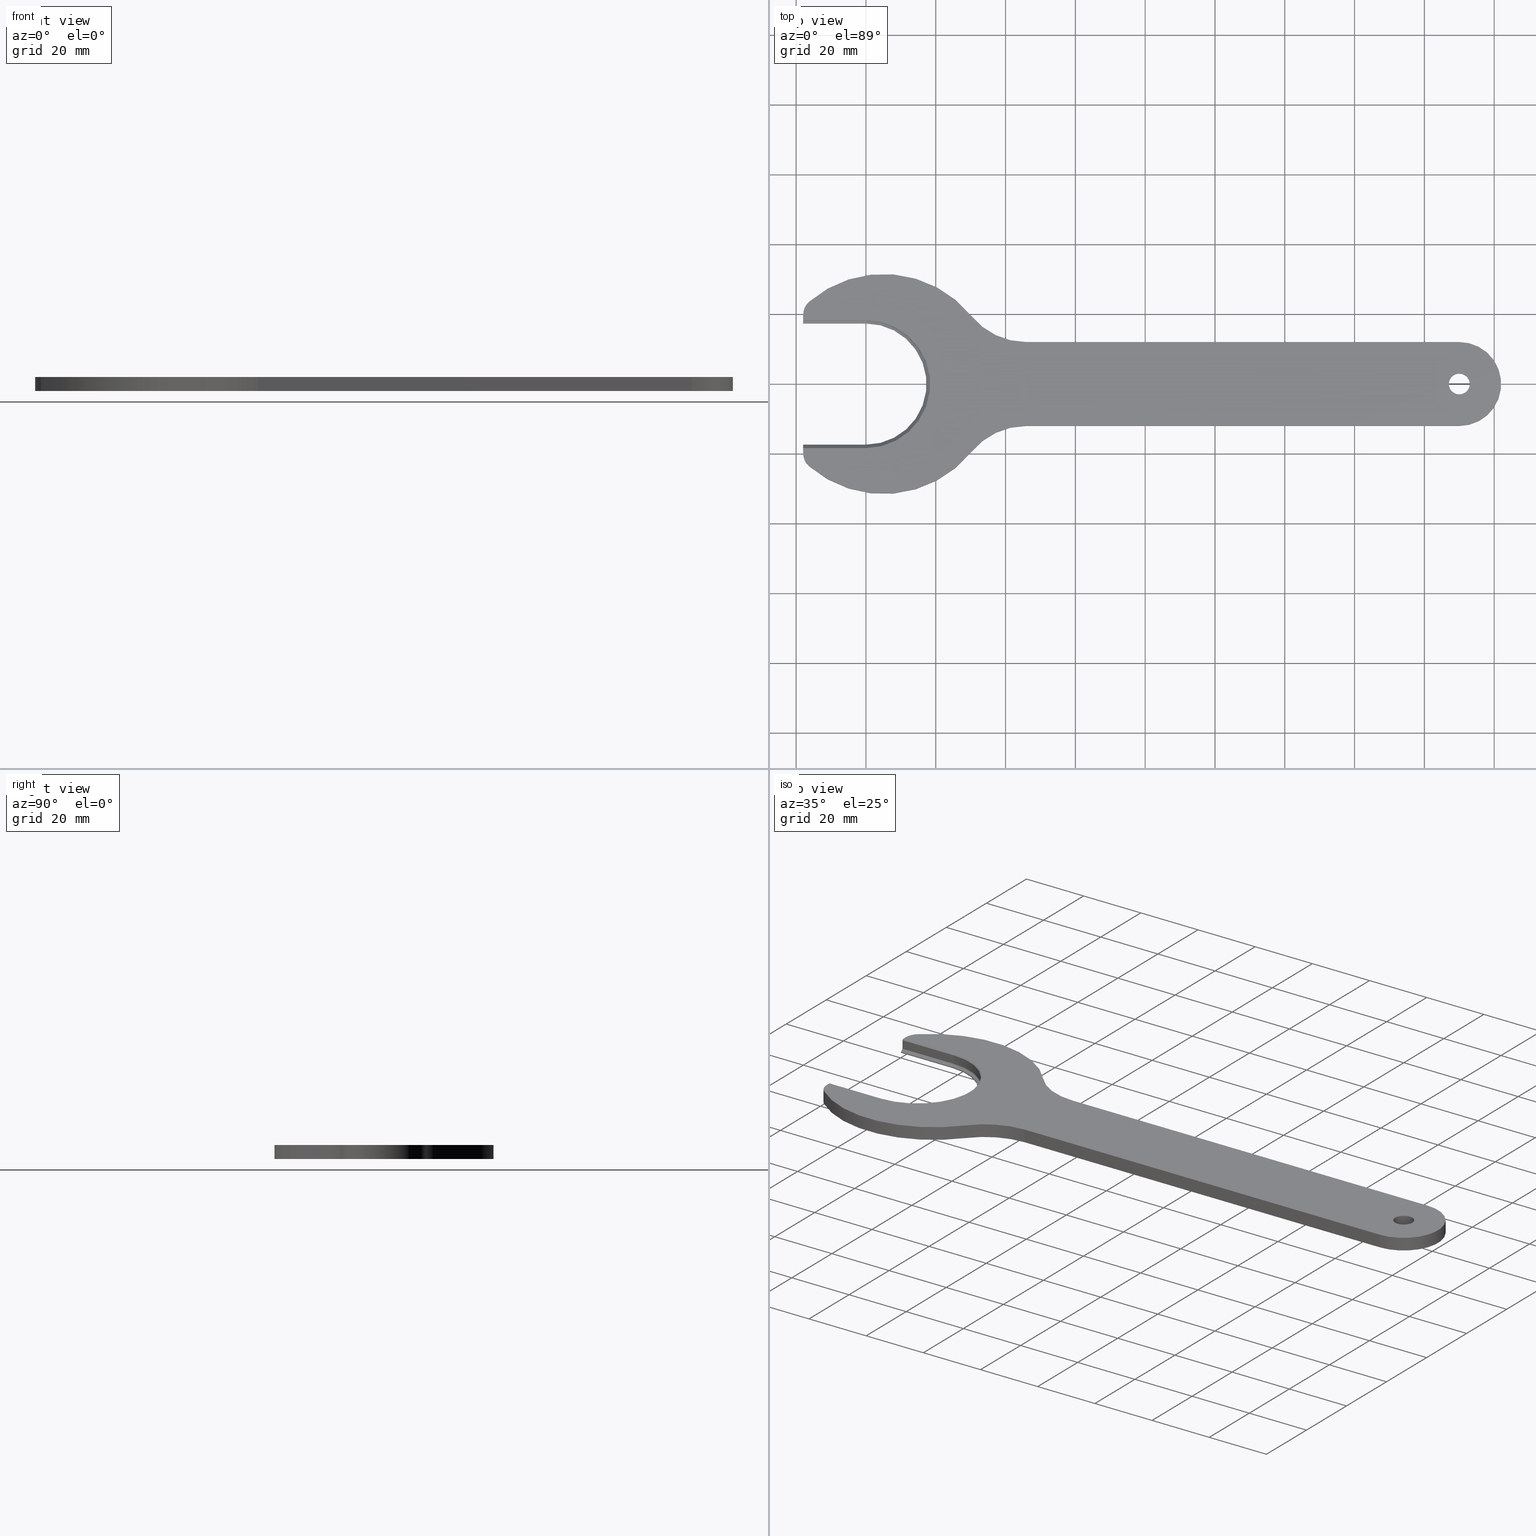
[diagram: canonical four-view strip — front | top / right | iso, engineering-drawing reading convention]
A machine part, canonical four-view strip (front | top / right | iso — engineering-drawing reading convention). The complete STEP part file that produces these views, byte-faithful:
ISO-10303-21;
HEADER;
FILE_DESCRIPTION( ( 'Unknown' ), '1' );
FILE_NAME( 'C:/Users/tkokas/Desktop/732132000-B.stp', 'Unknown', ( 'Unknown' ), ( 'Unknown' ), 'PSStep 15.0.49', 'Unknown', '  ' );
FILE_SCHEMA( ( 'AUTOMOTIVE_DESIGN { 1 0 10303 214 1 1 1 1 }' ) );
ENDSEC;
DATA;
#1 = MECHANICAL_DESIGN_GEOMETRIC_PRESENTATION_REPRESENTATION( ' ', ( #10, #11, #12, #13, #14, #15, #16, #17, #18, #19, #20, #21, #22, #23, #24, #25, #26, #27, #28, #29, #30, #31, #32, #33, #34, #35 ), #6 );
#2 = PRODUCT_DEFINITION_CONTEXT( '', #36, 'design' );
#3 = APPLICATION_PROTOCOL_DEFINITION( 'international standard', 'automotive_design', 2001, #36 );
#4 = PRODUCT_CATEGORY_RELATIONSHIP( 'NONE', 'NONE', #37, #38 );
#5 = SHAPE_DEFINITION_REPRESENTATION( #39, #40 );
#6 =  ( GEOMETRIC_REPRESENTATION_CONTEXT( 3 )GLOBAL_UNCERTAINTY_ASSIGNED_CONTEXT( ( #43 ) )GLOBAL_UNIT_ASSIGNED_CONTEXT( ( #45, #46, #47 ) )REPRESENTATION_CONTEXT( 'NONE', 'WORKSPACE' ) );
#10 = STYLED_ITEM( '', ( #49 ), #50 );
#11 = STYLED_ITEM( '', ( #51 ), #52 );
#12 = STYLED_ITEM( '', ( #53 ), #54 );
#13 = STYLED_ITEM( '', ( #55 ), #56 );
#14 = STYLED_ITEM( '', ( #57 ), #58 );
#15 = STYLED_ITEM( '', ( #59 ), #60 );
#16 = STYLED_ITEM( '', ( #61 ), #62 );
#17 = STYLED_ITEM( '', ( #63 ), #64 );
#18 = STYLED_ITEM( '', ( #65 ), #66 );
#19 = STYLED_ITEM( '', ( #67 ), #68 );
#20 = STYLED_ITEM( '', ( #69 ), #70 );
#21 = STYLED_ITEM( '', ( #71 ), #72 );
#22 = STYLED_ITEM( '', ( #73 ), #74 );
#23 = STYLED_ITEM( '', ( #75 ), #76 );
#24 = STYLED_ITEM( '', ( #77 ), #78 );
#25 = STYLED_ITEM( '', ( #79 ), #80 );
#26 = STYLED_ITEM( '', ( #81 ), #82 );
#27 = STYLED_ITEM( '', ( #83 ), #84 );
#28 = STYLED_ITEM( '', ( #85 ), #86 );
#29 = STYLED_ITEM( '', ( #87 ), #88 );
#30 = STYLED_ITEM( '', ( #89 ), #90 );
#31 = STYLED_ITEM( '', ( #91 ), #92 );
#32 = STYLED_ITEM( '', ( #93 ), #94 );
#33 = STYLED_ITEM( '', ( #95 ), #96 );
#34 = STYLED_ITEM( '', ( #97 ), #98 );
#35 = STYLED_ITEM( '', ( #99 ), #100 );
#36 = APPLICATION_CONTEXT( 'core data for automotive mechanical design processes' );
#37 = PRODUCT_CATEGORY( 'part', 'NONE' );
#38 = PRODUCT_RELATED_PRODUCT_CATEGORY( 'detail', ' ', ( #101 ) );
#39 = PRODUCT_DEFINITION_SHAPE( 'NONE', 'NONE', #102 );
#40 = ADVANCED_BREP_SHAPE_REPRESENTATION( '1', ( #103, #104 ), #6 );
#43 = UNCERTAINTY_MEASURE_WITH_UNIT( LENGTH_MEASURE( 0.00100000000000000 ), #45, '', '' );
#45 =  ( CONVERSION_BASED_UNIT( 'MILLIMETRE', #107 )LENGTH_UNIT(  )NAMED_UNIT( #110 ) );
#46 =  ( NAMED_UNIT( #112 )PLANE_ANGLE_UNIT(  )SI_UNIT( $, .RADIAN. ) );
#47 =  ( NAMED_UNIT( #112 )SI_UNIT( $, .STERADIAN. )SOLID_ANGLE_UNIT(  ) );
#49 = PRESENTATION_STYLE_ASSIGNMENT( ( #118 ) );
#50 = ADVANCED_FACE( '', ( #119 ), #120, .F. );
#51 = PRESENTATION_STYLE_ASSIGNMENT( ( #121 ) );
#52 = ADVANCED_FACE( '', ( #122 ), #123, .F. );
#53 = PRESENTATION_STYLE_ASSIGNMENT( ( #124 ) );
#54 = ADVANCED_FACE( '', ( #125 ), #126, .T. );
#55 = PRESENTATION_STYLE_ASSIGNMENT( ( #127 ) );
#56 = ADVANCED_FACE( '', ( #128 ), #129, .T. );
#57 = PRESENTATION_STYLE_ASSIGNMENT( ( #130 ) );
#58 = ADVANCED_FACE( '', ( #131 ), #132, .F. );
#59 = PRESENTATION_STYLE_ASSIGNMENT( ( #133 ) );
#60 = ADVANCED_FACE( '', ( #134 ), #135, .F. );
#61 = PRESENTATION_STYLE_ASSIGNMENT( ( #136 ) );
#62 = ADVANCED_FACE( '', ( #137 ), #138, .F. );
#63 = PRESENTATION_STYLE_ASSIGNMENT( ( #139 ) );
#64 = ADVANCED_FACE( '', ( #140 ), #141, .T. );
#65 = PRESENTATION_STYLE_ASSIGNMENT( ( #142 ) );
#66 = ADVANCED_FACE( '', ( #143 ), #144, .T. );
#67 = PRESENTATION_STYLE_ASSIGNMENT( ( #145 ) );
#68 = ADVANCED_FACE( '', ( #146, #147 ), #148, .F. );
#69 = PRESENTATION_STYLE_ASSIGNMENT( ( #149 ) );
#70 = ADVANCED_FACE( '', ( #150 ), #151, .T. );
#71 = PRESENTATION_STYLE_ASSIGNMENT( ( #152 ) );
#72 = ADVANCED_FACE( '', ( #153 ), #154, .F. );
#73 = PRESENTATION_STYLE_ASSIGNMENT( ( #155 ) );
#74 = ADVANCED_FACE( '', ( #156 ), #157, .T. );
#75 = PRESENTATION_STYLE_ASSIGNMENT( ( #158 ) );
#76 = ADVANCED_FACE( '', ( #159 ), #160, .F. );
#77 = PRESENTATION_STYLE_ASSIGNMENT( ( #161 ) );
#78 = ADVANCED_FACE( '', ( #162 ), #163, .T. );
#79 = PRESENTATION_STYLE_ASSIGNMENT( ( #164 ) );
#80 = ADVANCED_FACE( '', ( #165 ), #166, .T. );
#81 = PRESENTATION_STYLE_ASSIGNMENT( ( #167 ) );
#82 = ADVANCED_FACE( '', ( #168 ), #169, .T. );
#83 = PRESENTATION_STYLE_ASSIGNMENT( ( #170 ) );
#84 = ADVANCED_FACE( '', ( #171, #172 ), #173, .F. );
#85 = PRESENTATION_STYLE_ASSIGNMENT( ( #174 ) );
#86 = ADVANCED_FACE( '', ( #175 ), #176, .F. );
#87 = PRESENTATION_STYLE_ASSIGNMENT( ( #177 ) );
#88 = ADVANCED_FACE( '', ( #178 ), #179, .T. );
#89 = PRESENTATION_STYLE_ASSIGNMENT( ( #180 ) );
#90 = ADVANCED_FACE( '', ( #181 ), #182, .T. );
#91 = PRESENTATION_STYLE_ASSIGNMENT( ( #183 ) );
#92 = ADVANCED_FACE( '', ( #184 ), #185, .F. );
#93 = PRESENTATION_STYLE_ASSIGNMENT( ( #186 ) );
#94 = ADVANCED_FACE( '', ( #187 ), #188, .T. );
#95 = PRESENTATION_STYLE_ASSIGNMENT( ( #189 ) );
#96 = ADVANCED_FACE( '', ( #190 ), #191, .T. );
#97 = PRESENTATION_STYLE_ASSIGNMENT( ( #192 ) );
#98 = ADVANCED_FACE( '', ( #193, #194 ), #195, .T. );
#99 = PRESENTATION_STYLE_ASSIGNMENT( ( #196 ) );
#100 = ADVANCED_FACE( '', ( #197 ), #198, .F. );
#101 = PRODUCT( '1', '1', 'PART-1-DESC', ( #199 ) );
#102 = PRODUCT_DEFINITION( 'NONE', 'NONE', #200, #2 );
#103 = MANIFOLD_SOLID_BREP( '1', #201 );
#104 = AXIS2_PLACEMENT_3D( '', #202, #203, #204 );
#107 = LENGTH_MEASURE_WITH_UNIT( LENGTH_MEASURE( 1.00000000000000 ), #205 );
#110 = DIMENSIONAL_EXPONENTS( 1.00000000000000, 0.000000000000000, 0.000000000000000, 0.000000000000000, 0.000000000000000, 0.000000000000000, 0.000000000000000 );
#112 = DIMENSIONAL_EXPONENTS( 0.000000000000000, 0.000000000000000, 0.000000000000000, 0.000000000000000, 0.000000000000000, 0.000000000000000, 0.000000000000000 );
#118 = SURFACE_STYLE_USAGE( .BOTH., #206 );
#119 = FACE_OUTER_BOUND( '', #207, .T. );
#120 = CYLINDRICAL_SURFACE( '', #208, 18.1000000000000 );
#121 = SURFACE_STYLE_USAGE( .BOTH., #209 );
#122 = FACE_OUTER_BOUND( '', #210, .T. );
#123 = PLANE( '', #211 );
#124 = SURFACE_STYLE_USAGE( .BOTH., #212 );
#125 = FACE_OUTER_BOUND( '', #213, .T. );
#126 = PLANE( '', #214 );
#127 = SURFACE_STYLE_USAGE( .BOTH., #215 );
#128 = FACE_OUTER_BOUND( '', #216, .T. );
#129 = CYLINDRICAL_SURFACE( '', #217, 5.00000000000000 );
#130 = SURFACE_STYLE_USAGE( .BOTH., #218 );
#131 = FACE_OUTER_BOUND( '', #219, .T. );
#132 = CONICAL_SURFACE( '', #220, 18.4000000000000, 0.785398163397451 );
#133 = SURFACE_STYLE_USAGE( .BOTH., #221 );
#134 = FACE_OUTER_BOUND( '', #222, .T. );
#135 = PLANE( '', #223 );
#136 = SURFACE_STYLE_USAGE( .BOTH., #224 );
#137 = FACE_OUTER_BOUND( '', #225, .T. );
#138 = CONICAL_SURFACE( '', #226, 18.1000000000000, 0.785398163397449 );
#139 = SURFACE_STYLE_USAGE( .BOTH., #227 );
#140 = FACE_OUTER_BOUND( '', #228, .T. );
#141 = PLANE( '', #229 );
#142 = SURFACE_STYLE_USAGE( .BOTH., #230 );
#143 = FACE_OUTER_BOUND( '', #231, .T. );
#144 = PLANE( '', #232 );
#145 = SURFACE_STYLE_USAGE( .BOTH., #233 );
#146 = FACE_BOUND( '', #234, .T. );
#147 = FACE_OUTER_BOUND( '', #235, .T. );
#148 = PLANE( '', #236 );
#149 = SURFACE_STYLE_USAGE( .BOTH., #237 );
#150 = FACE_OUTER_BOUND( '', #238, .T. );
#151 = PLANE( '', #239 );
#152 = SURFACE_STYLE_USAGE( .BOTH., #240 );
#153 = FACE_OUTER_BOUND( '', #241, .T. );
#154 = CYLINDRICAL_SURFACE( '', #242, 20.0000000000000 );
#155 = SURFACE_STYLE_USAGE( .BOTH., #243 );
#156 = FACE_OUTER_BOUND( '', #244, .T. );
#157 = PLANE( '', #245 );
#158 = SURFACE_STYLE_USAGE( .BOTH., #246 );
#159 = FACE_OUTER_BOUND( '', #247, .T. );
#160 = PLANE( '', #248 );
#161 = SURFACE_STYLE_USAGE( .BOTH., #249 );
#162 = FACE_OUTER_BOUND( '', #250, .T. );
#163 = CYLINDRICAL_SURFACE( '', #251, 12.0000000000000 );
#164 = SURFACE_STYLE_USAGE( .BOTH., #252 );
#165 = FACE_OUTER_BOUND( '', #253, .T. );
#166 = PLANE( '', #254 );
#167 = SURFACE_STYLE_USAGE( .BOTH., #255 );
#168 = FACE_OUTER_BOUND( '', #256, .T. );
#169 = PLANE( '', #257 );
#170 = SURFACE_STYLE_USAGE( .BOTH., #258 );
#171 = FACE_OUTER_BOUND( '', #259, .T. );
#172 = FACE_OUTER_BOUND( '', #260, .T. );
#173 = CYLINDRICAL_SURFACE( '', #261, 3.00000000000000 );
#174 = SURFACE_STYLE_USAGE( .BOTH., #262 );
#175 = FACE_OUTER_BOUND( '', #263, .T. );
#176 = CYLINDRICAL_SURFACE( '', #264, 17.3500000000000 );
#177 = SURFACE_STYLE_USAGE( .BOTH., #265 );
#178 = FACE_OUTER_BOUND( '', #266, .T. );
#179 = CYLINDRICAL_SURFACE( '', #267, 5.00000000000000 );
#180 = SURFACE_STYLE_USAGE( .BOTH., #268 );
#181 = FACE_OUTER_BOUND( '', #269, .T. );
#182 = CYLINDRICAL_SURFACE( '', #270, 32.5000000000000 );
#183 = SURFACE_STYLE_USAGE( .BOTH., #271 );
#184 = FACE_OUTER_BOUND( '', #272, .T. );
#185 = CYLINDRICAL_SURFACE( '', #273, 20.0000000000000 );
#186 = SURFACE_STYLE_USAGE( .BOTH., #274 );
#187 = FACE_OUTER_BOUND( '', #275, .T. );
#188 = CYLINDRICAL_SURFACE( '', #276, 32.5000000000000 );
#189 = SURFACE_STYLE_USAGE( .BOTH., #277 );
#190 = FACE_OUTER_BOUND( '', #278, .T. );
#191 = PLANE( '', #279 );
#192 = SURFACE_STYLE_USAGE( .BOTH., #280 );
#193 = FACE_BOUND( '', #281, .T. );
#194 = FACE_OUTER_BOUND( '', #282, .T. );
#195 = PLANE( '', #283 );
#196 = SURFACE_STYLE_USAGE( .BOTH., #284 );
#197 = FACE_OUTER_BOUND( '', #285, .T. );
#198 = PLANE( '', #286 );
#199 = PRODUCT_CONTEXT( '', #36, 'mechanical' );
#200 = PRODUCT_DEFINITION_FORMATION_WITH_SPECIFIED_SOURCE( ' ', 'NONE', #101, .NOT_KNOWN. );
#201 = CLOSED_SHELL( '', ( #74, #92, #78, #80, #96, #94, #90, #68, #98, #84, #70, #50, #82, #86, #76, #52, #100, #58, #60, #54, #62, #66, #88, #56, #64, #72 ) );
#202 = CARTESIAN_POINT( '', ( 0.000000000000000, 0.000000000000000, 0.000000000000000 ) );
#203 = DIRECTION( '', ( 0.000000000000000, 0.000000000000000, 1.00000000000000 ) );
#204 = DIRECTION( '', ( 1.00000000000000, 0.000000000000000, 0.000000000000000 ) );
#205 =  ( LENGTH_UNIT(  )NAMED_UNIT( #110 )SI_UNIT( .MILLI., .METRE. ) );
#206 = SURFACE_SIDE_STYLE( '', ( #288 ) );
#207 = EDGE_LOOP( '', ( #289, #290, #291, #292 ) );
#208 = AXIS2_PLACEMENT_3D( '', #293, #294, #295 );
#209 = SURFACE_SIDE_STYLE( '', ( #296 ) );
#210 = EDGE_LOOP( '', ( #297, #298, #299, #300 ) );
#211 = AXIS2_PLACEMENT_3D( '', #301, #302, #303 );
#212 = SURFACE_SIDE_STYLE( '', ( #304 ) );
#213 = EDGE_LOOP( '', ( #305, #306, #307, #308 ) );
#214 = AXIS2_PLACEMENT_3D( '', #309, #310, #311 );
#215 = SURFACE_SIDE_STYLE( '', ( #312 ) );
#216 = EDGE_LOOP( '', ( #313, #314, #315, #316 ) );
#217 = AXIS2_PLACEMENT_3D( '', #317, #318, #319 );
#218 = SURFACE_SIDE_STYLE( '', ( #320 ) );
#219 = EDGE_LOOP( '', ( #321, #322, #323, #324 ) );
#220 = AXIS2_PLACEMENT_3D( '', #325, #326, #327 );
#221 = SURFACE_SIDE_STYLE( '', ( #328 ) );
#222 = EDGE_LOOP( '', ( #329, #330, #331, #332 ) );
#223 = AXIS2_PLACEMENT_3D( '', #333, #334, #335 );
#224 = SURFACE_SIDE_STYLE( '', ( #336 ) );
#225 = EDGE_LOOP( '', ( #337, #338, #339, #340 ) );
#226 = AXIS2_PLACEMENT_3D( '', #341, #342, #343 );
#227 = SURFACE_SIDE_STYLE( '', ( #344 ) );
#228 = EDGE_LOOP( '', ( #345, #346, #347, #348 ) );
#229 = AXIS2_PLACEMENT_3D( '', #349, #350, #351 );
#230 = SURFACE_SIDE_STYLE( '', ( #352 ) );
#231 = EDGE_LOOP( '', ( #353, #354, #355, #356 ) );
#232 = AXIS2_PLACEMENT_3D( '', #357, #358, #359 );
#233 = SURFACE_SIDE_STYLE( '', ( #360 ) );
#234 = EDGE_LOOP( '', ( #361 ) );
#235 = EDGE_LOOP( '', ( #362, #363, #364, #365, #366, #367, #368, #369, #370, #371, #372, #373, #374, #375 ) );
#236 = AXIS2_PLACEMENT_3D( '', #376, #377, #378 );
#237 = SURFACE_SIDE_STYLE( '', ( #379 ) );
#238 = EDGE_LOOP( '', ( #380, #381, #382, #383 ) );
#239 = AXIS2_PLACEMENT_3D( '', #384, #385, #386 );
#240 = SURFACE_SIDE_STYLE( '', ( #387 ) );
#241 = EDGE_LOOP( '', ( #388, #389, #390, #391 ) );
#242 = AXIS2_PLACEMENT_3D( '', #392, #393, #394 );
#243 = SURFACE_SIDE_STYLE( '', ( #395 ) );
#244 = EDGE_LOOP( '', ( #396, #397, #398, #399 ) );
#245 = AXIS2_PLACEMENT_3D( '', #400, #401, #402 );
#246 = SURFACE_SIDE_STYLE( '', ( #403 ) );
#247 = EDGE_LOOP( '', ( #404, #405, #406, #407 ) );
#248 = AXIS2_PLACEMENT_3D( '', #408, #409, #410 );
#249 = SURFACE_SIDE_STYLE( '', ( #411 ) );
#250 = EDGE_LOOP( '', ( #412, #413, #414, #415 ) );
#251 = AXIS2_PLACEMENT_3D( '', #416, #417, #418 );
#252 = SURFACE_SIDE_STYLE( '', ( #419 ) );
#253 = EDGE_LOOP( '', ( #420, #421, #422, #423, #424, #425, #426 ) );
#254 = AXIS2_PLACEMENT_3D( '', #427, #428, #429 );
#255 = SURFACE_SIDE_STYLE( '', ( #430 ) );
#256 = EDGE_LOOP( '', ( #431, #432, #433, #434 ) );
#257 = AXIS2_PLACEMENT_3D( '', #435, #436, #437 );
#258 = SURFACE_SIDE_STYLE( '', ( #438 ) );
#259 = EDGE_LOOP( '', ( #439 ) );
#260 = EDGE_LOOP( '', ( #440 ) );
#261 = AXIS2_PLACEMENT_3D( '', #441, #442, #443 );
#262 = SURFACE_SIDE_STYLE( '', ( #444 ) );
#263 = EDGE_LOOP( '', ( #445, #446, #447, #448 ) );
#264 = AXIS2_PLACEMENT_3D( '', #449, #450, #451 );
#265 = SURFACE_SIDE_STYLE( '', ( #452 ) );
#266 = EDGE_LOOP( '', ( #453, #454, #455, #456 ) );
#267 = AXIS2_PLACEMENT_3D( '', #457, #458, #459 );
#268 = SURFACE_SIDE_STYLE( '', ( #460 ) );
#269 = EDGE_LOOP( '', ( #461, #462, #463, #464 ) );
#270 = AXIS2_PLACEMENT_3D( '', #465, #466, #467 );
#271 = SURFACE_SIDE_STYLE( '', ( #468 ) );
#272 = EDGE_LOOP( '', ( #469, #470, #471, #472 ) );
#273 = AXIS2_PLACEMENT_3D( '', #473, #474, #475 );
#274 = SURFACE_SIDE_STYLE( '', ( #476 ) );
#275 = EDGE_LOOP( '', ( #477, #478, #479, #480 ) );
#276 = AXIS2_PLACEMENT_3D( '', #481, #482, #483 );
#277 = SURFACE_SIDE_STYLE( '', ( #484 ) );
#278 = EDGE_LOOP( '', ( #485, #486, #487, #488, #489, #490, #491 ) );
#279 = AXIS2_PLACEMENT_3D( '', #492, #493, #494 );
#280 = SURFACE_SIDE_STYLE( '', ( #495 ) );
#281 = EDGE_LOOP( '', ( #496 ) );
#282 = EDGE_LOOP( '', ( #497, #498, #499, #500, #501, #502, #503, #504, #505, #506, #507, #508, #509, #510 ) );
#283 = AXIS2_PLACEMENT_3D( '', #511, #512, #513 );
#284 = SURFACE_SIDE_STYLE( '', ( #514 ) );
#285 = EDGE_LOOP( '', ( #515, #516, #517, #518 ) );
#286 = AXIS2_PLACEMENT_3D( '', #519, #520, #521 );
#288 = SURFACE_STYLE_FILL_AREA( #522 );
#289 = ORIENTED_EDGE( '', *, *, #523, .T. );
#290 = ORIENTED_EDGE( '', *, *, #524, .T. );
#291 = ORIENTED_EDGE( '', *, *, #525, .F. );
#292 = ORIENTED_EDGE( '', *, *, #526, .T. );
#293 = CARTESIAN_POINT( '', ( 0.000000000000000, 0.000000000000000, -1.00000000000000 ) );
#294 = DIRECTION( '', ( -0.000000000000000, -0.000000000000000, -1.00000000000000 ) );
#295 = DIRECTION( '', ( 1.00000000000000, 0.000000000000000, 0.000000000000000 ) );
#296 = SURFACE_STYLE_FILL_AREA( #527 );
#297 = ORIENTED_EDGE( '', *, *, #528, .T. );
#298 = ORIENTED_EDGE( '', *, *, #529, .T. );
#299 = ORIENTED_EDGE( '', *, *, #530, .F. );
#300 = ORIENTED_EDGE( '', *, *, #531, .F. );
#301 = CARTESIAN_POINT( '', ( 0.000000000000000, -17.3500000000000, -207.726011739126 ) );
#302 = DIRECTION( '', ( 0.000000000000000, -1.00000000000000, 0.000000000000000 ) );
#303 = DIRECTION( '', ( 0.000000000000000, 0.000000000000000, -1.00000000000000 ) );
#304 = SURFACE_STYLE_FILL_AREA( #532 );
#305 = ORIENTED_EDGE( '', *, *, #529, .F. );
#306 = ORIENTED_EDGE( '', *, *, #533, .F. );
#307 = ORIENTED_EDGE( '', *, *, #534, .F. );
#308 = ORIENTED_EDGE( '', *, *, #535, .T. );
#309 = CARTESIAN_POINT( '', ( 6.97744331448449E-015, -18.1000000000000, -1.00000000000000 ) );
#310 = DIRECTION( '', ( -2.72585496299266E-016, 0.707106781186547, 0.707106781186548 ) );
#311 = DIRECTION( '', ( 0.000000000000000, -0.707106781186548, 0.707106781186547 ) );
#312 = SURFACE_STYLE_FILL_AREA( #536 );
#313 = ORIENTED_EDGE( '', *, *, #537, .F. );
#314 = ORIENTED_EDGE( '', *, *, #538, .F. );
#315 = ORIENTED_EDGE( '', *, *, #539, .F. );
#316 = ORIENTED_EDGE( '', *, *, #540, .F. );
#317 = CARTESIAN_POINT( '', ( -13.0000000000000, 19.7906228862918, 2.00000000000000 ) );
#318 = DIRECTION( '', ( -0.000000000000000, -0.000000000000000, 1.00000000000000 ) );
#319 = DIRECTION( '', ( -1.00000000000000, 0.000000000000000, 0.000000000000000 ) );
#320 = SURFACE_STYLE_FILL_AREA( #541 );
#321 = ORIENTED_EDGE( '', *, *, #542, .T. );
#322 = ORIENTED_EDGE( '', *, *, #543, .F. );
#323 = ORIENTED_EDGE( '', *, *, #544, .F. );
#324 = ORIENTED_EDGE( '', *, *, #524, .F. );
#325 = CARTESIAN_POINT( '', ( 0.000000000000000, 0.000000000000000, 2.00000000000000 ) );
#326 = DIRECTION( '', ( -0.000000000000000, -0.000000000000000, 1.00000000000000 ) );
#327 = DIRECTION( '', ( 1.00000000000000, 0.000000000000000, 0.000000000000000 ) );
#328 = SURFACE_STYLE_FILL_AREA( #545 );
#329 = ORIENTED_EDGE( '', *, *, #546, .F. );
#330 = ORIENTED_EDGE( '', *, *, #547, .F. );
#331 = ORIENTED_EDGE( '', *, *, #542, .F. );
#332 = ORIENTED_EDGE( '', *, *, #548, .F. );
#333 = CARTESIAN_POINT( '', ( 45.8319727664486, -18.4000000000000, 2.00000000000000 ) );
#334 = DIRECTION( '', ( 0.000000000000000, -0.707106781186549, -0.707106781186546 ) );
#335 = DIRECTION( '', ( 0.000000000000000, 0.707106781186545, -0.707106781186549 ) );
#336 = SURFACE_STYLE_FILL_AREA( #549 );
#337 = ORIENTED_EDGE( '', *, *, #550, .F. );
#338 = ORIENTED_EDGE( '', *, *, #535, .F. );
#339 = ORIENTED_EDGE( '', *, *, #526, .F. );
#340 = ORIENTED_EDGE( '', *, *, #551, .T. );
#341 = CARTESIAN_POINT( '', ( 3.30643715532042E-015, 0.000000000000000, -1.00000000000000 ) );
#342 = DIRECTION( '', ( -0.000000000000000, -0.000000000000000, 1.00000000000000 ) );
#343 = DIRECTION( '', ( 1.00000000000000, 0.000000000000000, 0.000000000000000 ) );
#344 = SURFACE_STYLE_FILL_AREA( #552 );
#345 = ORIENTED_EDGE( '', *, *, #553, .F. );
#346 = ORIENTED_EDGE( '', *, *, #554, .F. );
#347 = ORIENTED_EDGE( '', *, *, #555, .T. );
#348 = ORIENTED_EDGE( '', *, *, #556, .T. );
#349 = CARTESIAN_POINT( '', ( 45.8319727664486, 12.0000000000000, 2.00000000000000 ) );
#350 = DIRECTION( '', ( 0.000000000000000, 1.00000000000000, 0.000000000000000 ) );
#351 = DIRECTION( '', ( 0.000000000000000, 0.000000000000000, 1.00000000000000 ) );
#352 = SURFACE_STYLE_FILL_AREA( #557 );
#353 = ORIENTED_EDGE( '', *, *, #558, .F. );
#354 = ORIENTED_EDGE( '', *, *, #551, .F. );
#355 = ORIENTED_EDGE( '', *, *, #559, .F. );
#356 = ORIENTED_EDGE( '', *, *, #560, .F. );
#357 = CARTESIAN_POINT( '', ( 0.000000000000000, 18.1000000000000, -1.00000000000000 ) );
#358 = DIRECTION( '', ( 0.000000000000000, -0.707106781186547, 0.707106781186548 ) );
#359 = DIRECTION( '', ( 0.000000000000000, -0.707106781186548, -0.707106781186547 ) );
#360 = SURFACE_STYLE_FILL_AREA( #561 );
#361 = ORIENTED_EDGE( '', *, *, #562, .T. );
#362 = ORIENTED_EDGE( '', *, *, #563, .T. );
#363 = ORIENTED_EDGE( '', *, *, #564, .T. );
#364 = ORIENTED_EDGE( '', *, *, #565, .T. );
#365 = ORIENTED_EDGE( '', *, *, #539, .T. );
#366 = ORIENTED_EDGE( '', *, *, #566, .T. );
#367 = ORIENTED_EDGE( '', *, *, #567, .T. );
#368 = ORIENTED_EDGE( '', *, *, #553, .T. );
#369 = ORIENTED_EDGE( '', *, *, #568, .T. );
#370 = ORIENTED_EDGE( '', *, *, #569, .T. );
#371 = ORIENTED_EDGE( '', *, *, #570, .T. );
#372 = ORIENTED_EDGE( '', *, *, #571, .T. );
#373 = ORIENTED_EDGE( '', *, *, #572, .T. );
#374 = ORIENTED_EDGE( '', *, *, #573, .T. );
#375 = ORIENTED_EDGE( '', *, *, #531, .T. );
#376 = CARTESIAN_POINT( '', ( 45.8319727664486, 32.0000000000000, -2.00000000000000 ) );
#377 = DIRECTION( '', ( 0.000000000000000, 0.000000000000000, 1.00000000000000 ) );
#378 = DIRECTION( '', ( 1.00000000000000, 0.000000000000000, 0.000000000000000 ) );
#379 = SURFACE_STYLE_FILL_AREA( #574 );
#380 = ORIENTED_EDGE( '', *, *, #525, .T. );
#381 = ORIENTED_EDGE( '', *, *, #575, .T. );
#382 = ORIENTED_EDGE( '', *, *, #576, .F. );
#383 = ORIENTED_EDGE( '', *, *, #559, .T. );
#384 = CARTESIAN_POINT( '', ( -18.0000000000000, 18.1000000000000, -1.00000000000000 ) );
#385 = DIRECTION( '', ( 0.000000000000000, -1.00000000000000, 0.000000000000000 ) );
#386 = DIRECTION( '', ( 0.000000000000000, 0.000000000000000, -1.00000000000000 ) );
#387 = SURFACE_STYLE_FILL_AREA( #577 );
#388 = ORIENTED_EDGE( '', *, *, #567, .F. );
#389 = ORIENTED_EDGE( '', *, *, #578, .F. );
#390 = ORIENTED_EDGE( '', *, *, #579, .T. );
#391 = ORIENTED_EDGE( '', *, *, #554, .T. );
#392 = CARTESIAN_POINT( '', ( 45.8319727664486, 32.0000000000000, 2.00000000000000 ) );
#393 = DIRECTION( '', ( -0.000000000000000, -0.000000000000000, 1.00000000000000 ) );
#394 = DIRECTION( '', ( -1.00000000000000, 0.000000000000000, 0.000000000000000 ) );
#395 = SURFACE_STYLE_FILL_AREA( #580 );
#396 = ORIENTED_EDGE( '', *, *, #569, .F. );
#397 = ORIENTED_EDGE( '', *, *, #581, .F. );
#398 = ORIENTED_EDGE( '', *, *, #582, .T. );
#399 = ORIENTED_EDGE( '', *, *, #583, .T. );
#400 = CARTESIAN_POINT( '', ( 170.000000000000, -12.0000000000000, 2.00000000000000 ) );
#401 = DIRECTION( '', ( 0.000000000000000, -1.00000000000000, 0.000000000000000 ) );
#402 = DIRECTION( '', ( 0.000000000000000, 0.000000000000000, -1.00000000000000 ) );
#403 = SURFACE_STYLE_FILL_AREA( #584 );
#404 = ORIENTED_EDGE( '', *, *, #585, .T. );
#405 = ORIENTED_EDGE( '', *, *, #558, .T. );
#406 = ORIENTED_EDGE( '', *, *, #586, .F. );
#407 = ORIENTED_EDGE( '', *, *, #564, .F. );
#408 = CARTESIAN_POINT( '', ( 0.000000000000000, 17.3500000000000, -207.726011739126 ) );
#409 = DIRECTION( '', ( -1.92747052886311E-016, 1.00000000000000, 0.000000000000000 ) );
#410 = DIRECTION( '', ( -1.00000000000000, -1.92747052886310E-016, 0.000000000000000 ) );
#411 = SURFACE_STYLE_FILL_AREA( #587 );
#412 = ORIENTED_EDGE( '', *, *, #568, .F. );
#413 = ORIENTED_EDGE( '', *, *, #556, .F. );
#414 = ORIENTED_EDGE( '', *, *, #588, .T. );
#415 = ORIENTED_EDGE( '', *, *, #581, .T. );
#416 = CARTESIAN_POINT( '', ( 170.000000000000, 0.000000000000000, 2.00000000000000 ) );
#417 = DIRECTION( '', ( -0.000000000000000, -0.000000000000000, 1.00000000000000 ) );
#418 = DIRECTION( '', ( -1.00000000000000, 0.000000000000000, 0.000000000000000 ) );
#419 = SURFACE_STYLE_FILL_AREA( #589 );
#420 = ORIENTED_EDGE( '', *, *, #528, .F. );
#421 = ORIENTED_EDGE( '', *, *, #573, .F. );
#422 = ORIENTED_EDGE( '', *, *, #590, .T. );
#423 = ORIENTED_EDGE( '', *, *, #591, .T. );
#424 = ORIENTED_EDGE( '', *, *, #546, .T. );
#425 = ORIENTED_EDGE( '', *, *, #592, .F. );
#426 = ORIENTED_EDGE( '', *, *, #533, .T. );
#427 = CARTESIAN_POINT( '', ( -18.0000000000000, -17.1000000000000, 2.00000000000000 ) );
#428 = DIRECTION( '', ( -1.00000000000000, 0.000000000000000, 0.000000000000000 ) );
#429 = DIRECTION( '', ( 0.000000000000000, 0.000000000000000, 1.00000000000000 ) );
#430 = SURFACE_STYLE_FILL_AREA( #593 );
#431 = ORIENTED_EDGE( '', *, *, #592, .T. );
#432 = ORIENTED_EDGE( '', *, *, #548, .T. );
#433 = ORIENTED_EDGE( '', *, *, #523, .F. );
#434 = ORIENTED_EDGE( '', *, *, #534, .T. );
#435 = CARTESIAN_POINT( '', ( 0.000000000000000, -18.1000000000000, -1.00000000000000 ) );
#436 = DIRECTION( '', ( 0.000000000000000, 1.00000000000000, 0.000000000000000 ) );
#437 = DIRECTION( '', ( 0.000000000000000, 0.000000000000000, 1.00000000000000 ) );
#438 = SURFACE_STYLE_FILL_AREA( #594 );
#439 = ORIENTED_EDGE( '', *, *, #562, .F. );
#440 = ORIENTED_EDGE( '', *, *, #595, .T. );
#441 = CARTESIAN_POINT( '', ( 170.000000000000, 0.000000000000000, -207.726011739126 ) );
#442 = DIRECTION( '', ( -0.000000000000000, -0.000000000000000, -1.00000000000000 ) );
#443 = DIRECTION( '', ( 1.00000000000000, 0.000000000000000, 0.000000000000000 ) );
#444 = SURFACE_STYLE_FILL_AREA( #596 );
#445 = ORIENTED_EDGE( '', *, *, #530, .T. );
#446 = ORIENTED_EDGE( '', *, *, #550, .T. );
#447 = ORIENTED_EDGE( '', *, *, #585, .F. );
#448 = ORIENTED_EDGE( '', *, *, #563, .F. );
#449 = CARTESIAN_POINT( '', ( 0.000000000000000, 0.000000000000000, -207.726011739126 ) );
#450 = DIRECTION( '', ( -0.000000000000000, -0.000000000000000, -1.00000000000000 ) );
#451 = DIRECTION( '', ( 1.00000000000000, 0.000000000000000, 0.000000000000000 ) );
#452 = SURFACE_STYLE_FILL_AREA( #597 );
#453 = ORIENTED_EDGE( '', *, *, #598, .F. );
#454 = ORIENTED_EDGE( '', *, *, #590, .F. );
#455 = ORIENTED_EDGE( '', *, *, #572, .F. );
#456 = ORIENTED_EDGE( '', *, *, #599, .F. );
#457 = CARTESIAN_POINT( '', ( -13.0000000000000, -19.7906228862918, 2.00000000000000 ) );
#458 = DIRECTION( '', ( -0.000000000000000, -0.000000000000000, 1.00000000000000 ) );
#459 = DIRECTION( '', ( -1.00000000000000, 0.000000000000000, 0.000000000000000 ) );
#460 = SURFACE_STYLE_FILL_AREA( #600 );
#461 = ORIENTED_EDGE( '', *, *, #566, .F. );
#462 = ORIENTED_EDGE( '', *, *, #538, .T. );
#463 = ORIENTED_EDGE( '', *, *, #601, .T. );
#464 = ORIENTED_EDGE( '', *, *, #578, .T. );
#465 = CARTESIAN_POINT( '', ( 5.00000000000000, -1.00000000000000, 2.00000000000000 ) );
#466 = DIRECTION( '', ( -0.000000000000000, -0.000000000000000, 1.00000000000000 ) );
#467 = DIRECTION( '', ( -1.00000000000000, 0.000000000000000, 0.000000000000000 ) );
#468 = SURFACE_STYLE_FILL_AREA( #602 );
#469 = ORIENTED_EDGE( '', *, *, #570, .F. );
#470 = ORIENTED_EDGE( '', *, *, #583, .F. );
#471 = ORIENTED_EDGE( '', *, *, #603, .T. );
#472 = ORIENTED_EDGE( '', *, *, #604, .T. );
#473 = CARTESIAN_POINT( '', ( 45.8319727664486, -32.0000000000000, 2.00000000000000 ) );
#474 = DIRECTION( '', ( -0.000000000000000, -0.000000000000000, 1.00000000000000 ) );
#475 = DIRECTION( '', ( -1.00000000000000, 0.000000000000000, 0.000000000000000 ) );
#476 = SURFACE_STYLE_FILL_AREA( #605 );
#477 = ORIENTED_EDGE( '', *, *, #606, .T. );
#478 = ORIENTED_EDGE( '', *, *, #599, .T. );
#479 = ORIENTED_EDGE( '', *, *, #571, .F. );
#480 = ORIENTED_EDGE( '', *, *, #604, .F. );
#481 = CARTESIAN_POINT( '', ( 5.00000000000000, 1.00000000000000, 2.00000000000000 ) );
#482 = DIRECTION( '', ( -0.000000000000000, -0.000000000000000, 1.00000000000000 ) );
#483 = DIRECTION( '', ( -1.00000000000000, 0.000000000000000, 0.000000000000000 ) );
#484 = SURFACE_STYLE_FILL_AREA( #607 );
#485 = ORIENTED_EDGE( '', *, *, #586, .T. );
#486 = ORIENTED_EDGE( '', *, *, #560, .T. );
#487 = ORIENTED_EDGE( '', *, *, #576, .T. );
#488 = ORIENTED_EDGE( '', *, *, #608, .T. );
#489 = ORIENTED_EDGE( '', *, *, #609, .T. );
#490 = ORIENTED_EDGE( '', *, *, #540, .T. );
#491 = ORIENTED_EDGE( '', *, *, #565, .F. );
#492 = CARTESIAN_POINT( '', ( -18.0000000000000, 21.9619250064100, 2.00000000000000 ) );
#493 = DIRECTION( '', ( -1.00000000000000, 7.13595324358029E-016, 0.000000000000000 ) );
#494 = DIRECTION( '', ( -7.13595324358029E-016, -1.00000000000000, 0.000000000000000 ) );
#495 = SURFACE_STYLE_FILL_AREA( #610 );
#496 = ORIENTED_EDGE( '', *, *, #595, .F. );
#497 = ORIENTED_EDGE( '', *, *, #609, .F. );
#498 = ORIENTED_EDGE( '', *, *, #611, .T. );
#499 = ORIENTED_EDGE( '', *, *, #543, .T. );
#500 = ORIENTED_EDGE( '', *, *, #547, .T. );
#501 = ORIENTED_EDGE( '', *, *, #591, .F. );
#502 = ORIENTED_EDGE( '', *, *, #598, .T. );
#503 = ORIENTED_EDGE( '', *, *, #606, .F. );
#504 = ORIENTED_EDGE( '', *, *, #603, .F. );
#505 = ORIENTED_EDGE( '', *, *, #582, .F. );
#506 = ORIENTED_EDGE( '', *, *, #588, .F. );
#507 = ORIENTED_EDGE( '', *, *, #555, .F. );
#508 = ORIENTED_EDGE( '', *, *, #579, .F. );
#509 = ORIENTED_EDGE( '', *, *, #601, .F. );
#510 = ORIENTED_EDGE( '', *, *, #537, .T. );
#511 = CARTESIAN_POINT( '', ( 45.8319727664486, 32.0000000000000, 2.00000000000000 ) );
#512 = DIRECTION( '', ( 0.000000000000000, 0.000000000000000, 1.00000000000000 ) );
#513 = DIRECTION( '', ( 1.00000000000000, 0.000000000000000, 0.000000000000000 ) );
#514 = SURFACE_STYLE_FILL_AREA( #612 );
#515 = ORIENTED_EDGE( '', *, *, #608, .F. );
#516 = ORIENTED_EDGE( '', *, *, #575, .F. );
#517 = ORIENTED_EDGE( '', *, *, #544, .T. );
#518 = ORIENTED_EDGE( '', *, *, #611, .F. );
#519 = CARTESIAN_POINT( '', ( 45.8319727664486, 18.4000000000000, 2.00000000000000 ) );
#520 = DIRECTION( '', ( 0.000000000000000, 0.707106781186546, -0.707106781186549 ) );
#521 = DIRECTION( '', ( 0.000000000000000, 0.707106781186549, 0.707106781186545 ) );
#522 = FILL_AREA_STYLE( '', ( #613 ) );
#523 = EDGE_CURVE( '', #614, #615, #616, .T. );
#524 = EDGE_CURVE( '', #615, #617, #618, .T. );
#525 = EDGE_CURVE( '', #619, #617, #620, .T. );
#526 = EDGE_CURVE( '', #619, #614, #621, .T. );
#527 = FILL_AREA_STYLE( '', ( #622 ) );
#528 = EDGE_CURVE( '', #623, #624, #625, .T. );
#529 = EDGE_CURVE( '', #624, #626, #627, .T. );
#530 = EDGE_CURVE( '', #628, #626, #629, .T. );
#531 = EDGE_CURVE( '', #623, #628, #630, .T. );
#532 = FILL_AREA_STYLE( '', ( #631 ) );
#533 = EDGE_CURVE( '', #632, #624, #633, .T. );
#534 = EDGE_CURVE( '', #614, #632, #634, .T. );
#535 = EDGE_CURVE( '', #614, #626, #635, .T. );
#536 = FILL_AREA_STYLE( '', ( #636 ) );
#537 = EDGE_CURVE( '', #637, #638, #639, .T. );
#538 = EDGE_CURVE( '', #640, #637, #641, .F. );
#539 = EDGE_CURVE( '', #642, #640, #643, .F. );
#540 = EDGE_CURVE( '', #638, #642, #644, .T. );
#541 = FILL_AREA_STYLE( '', ( #645 ) );
#542 = EDGE_CURVE( '', #615, #646, #647, .T. );
#543 = EDGE_CURVE( '', #648, #646, #649, .F. );
#544 = EDGE_CURVE( '', #617, #648, #650, .T. );
#545 = FILL_AREA_STYLE( '', ( #651 ) );
#546 = EDGE_CURVE( '', #652, #653, #654, .F. );
#547 = EDGE_CURVE( '', #646, #652, #655, .T. );
#548 = EDGE_CURVE( '', #653, #615, #656, .T. );
#549 = FILL_AREA_STYLE( '', ( #657 ) );
#550 = EDGE_CURVE( '', #626, #658, #659, .T. );
#551 = EDGE_CURVE( '', #619, #658, #660, .T. );
#552 = FILL_AREA_STYLE( '', ( #661 ) );
#553 = EDGE_CURVE( '', #662, #663, #664, .T. );
#554 = EDGE_CURVE( '', #665, #662, #666, .T. );
#555 = EDGE_CURVE( '', #665, #667, #668, .T. );
#556 = EDGE_CURVE( '', #667, #663, #669, .T. );
#557 = FILL_AREA_STYLE( '', ( #670 ) );
#558 = EDGE_CURVE( '', #658, #671, #672, .T. );
#559 = EDGE_CURVE( '', #673, #619, #674, .T. );
#560 = EDGE_CURVE( '', #671, #673, #675, .T. );
#561 = FILL_AREA_STYLE( '', ( #676 ) );
#562 = EDGE_CURVE( '', #677, #677, #678, .T. );
#563 = EDGE_CURVE( '', #628, #679, #680, .T. );
#564 = EDGE_CURVE( '', #679, #681, #682, .T. );
#565 = EDGE_CURVE( '', #681, #642, #683, .T. );
#566 = EDGE_CURVE( '', #640, #684, #685, .T. );
#567 = EDGE_CURVE( '', #684, #662, #686, .T. );
#568 = EDGE_CURVE( '', #663, #687, #688, .T. );
#569 = EDGE_CURVE( '', #687, #689, #690, .T. );
#570 = EDGE_CURVE( '', #689, #691, #692, .T. );
#571 = EDGE_CURVE( '', #691, #693, #694, .T. );
#572 = EDGE_CURVE( '', #693, #695, #696, .F. );
#573 = EDGE_CURVE( '', #695, #623, #697, .T. );
#574 = FILL_AREA_STYLE( '', ( #698 ) );
#575 = EDGE_CURVE( '', #617, #699, #700, .T. );
#576 = EDGE_CURVE( '', #673, #699, #701, .T. );
#577 = FILL_AREA_STYLE( '', ( #702 ) );
#578 = EDGE_CURVE( '', #703, #684, #704, .T. );
#579 = EDGE_CURVE( '', #703, #665, #705, .T. );
#580 = FILL_AREA_STYLE( '', ( #706 ) );
#581 = EDGE_CURVE( '', #707, #687, #708, .T. );
#582 = EDGE_CURVE( '', #707, #709, #710, .T. );
#583 = EDGE_CURVE( '', #709, #689, #711, .T. );
#584 = FILL_AREA_STYLE( '', ( #712 ) );
#585 = EDGE_CURVE( '', #679, #658, #713, .T. );
#586 = EDGE_CURVE( '', #681, #671, #714, .T. );
#587 = FILL_AREA_STYLE( '', ( #715 ) );
#588 = EDGE_CURVE( '', #667, #707, #716, .T. );
#589 = FILL_AREA_STYLE( '', ( #717 ) );
#590 = EDGE_CURVE( '', #695, #718, #719, .F. );
#591 = EDGE_CURVE( '', #718, #652, #720, .T. );
#592 = EDGE_CURVE( '', #632, #653, #721, .T. );
#593 = FILL_AREA_STYLE( '', ( #722 ) );
#594 = FILL_AREA_STYLE( '', ( #723 ) );
#595 = EDGE_CURVE( '', #724, #724, #725, .T. );
#596 = FILL_AREA_STYLE( '', ( #726 ) );
#597 = FILL_AREA_STYLE( '', ( #727 ) );
#598 = EDGE_CURVE( '', #718, #728, #729, .T. );
#599 = EDGE_CURVE( '', #728, #693, #730, .T. );
#600 = FILL_AREA_STYLE( '', ( #731 ) );
#601 = EDGE_CURVE( '', #637, #703, #732, .T. );
#602 = FILL_AREA_STYLE( '', ( #733 ) );
#603 = EDGE_CURVE( '', #709, #734, #735, .T. );
#604 = EDGE_CURVE( '', #734, #691, #736, .T. );
#605 = FILL_AREA_STYLE( '', ( #737 ) );
#606 = EDGE_CURVE( '', #734, #728, #738, .T. );
#607 = FILL_AREA_STYLE( '', ( #739 ) );
#608 = EDGE_CURVE( '', #699, #740, #741, .F. );
#609 = EDGE_CURVE( '', #740, #638, #742, .T. );
#610 = FILL_AREA_STYLE( '', ( #743 ) );
#611 = EDGE_CURVE( '', #740, #648, #744, .T. );
#612 = FILL_AREA_STYLE( '', ( #745 ) );
#613 = FILL_AREA_STYLE_COLOUR( '', #746 );
#614 = VERTEX_POINT( '', #747 );
#615 = VERTEX_POINT( '', #748 );
#616 = LINE( '', #749, #750 );
#617 = VERTEX_POINT( '', #751 );
#618 = CIRCLE( '', #752, 18.1000000000000 );
#619 = VERTEX_POINT( '', #753 );
#620 = LINE( '', #754, #755 );
#621 = CIRCLE( '', #756, 18.1000000000000 );
#622 = FILL_AREA_STYLE_COLOUR( '', #757 );
#623 = VERTEX_POINT( '', #758 );
#624 = VERTEX_POINT( '', #759 );
#625 = LINE( '', #760, #761 );
#626 = VERTEX_POINT( '', #762 );
#627 = LINE( '', #763, #764 );
#628 = VERTEX_POINT( '', #765 );
#629 = LINE( '', #766, #767 );
#630 = LINE( '', #768, #769 );
#631 = FILL_AREA_STYLE_COLOUR( '', #770 );
#632 = VERTEX_POINT( '', #771 );
#633 = LINE( '', #772, #773 );
#634 = LINE( '', #774, #775 );
#635 = LINE( '', #776, #777 );
#636 = FILL_AREA_STYLE_COLOUR( '', #778 );
#637 = VERTEX_POINT( '', #779 );
#638 = VERTEX_POINT( '', #780 );
#639 = CIRCLE( '', #781, 5.00000000000000 );
#640 = VERTEX_POINT( '', #782 );
#641 = LINE( '', #783, #784 );
#642 = VERTEX_POINT( '', #785 );
#643 = CIRCLE( '', #786, 5.00000000000000 );
#644 = LINE( '', #787, #788 );
#645 = FILL_AREA_STYLE_COLOUR( '', #789 );
#646 = VERTEX_POINT( '', #790 );
#647 = LINE( '', #791, #792 );
#648 = VERTEX_POINT( '', #793 );
#649 = CIRCLE( '', #794, 18.4000000000000 );
#650 = LINE( '', #795, #796 );
#651 = FILL_AREA_STYLE_COLOUR( '', #797 );
#652 = VERTEX_POINT( '', #798 );
#653 = VERTEX_POINT( '', #799 );
#654 = LINE( '', #800, #801 );
#655 = LINE( '', #802, #803 );
#656 = LINE( '', #804, #805 );
#657 = FILL_AREA_STYLE_COLOUR( '', #806 );
#658 = VERTEX_POINT( '', #807 );
#659 = CIRCLE( '', #808, 17.3500000000000 );
#660 = LINE( '', #809, #810 );
#661 = FILL_AREA_STYLE_COLOUR( '', #811 );
#662 = VERTEX_POINT( '', #812 );
#663 = VERTEX_POINT( '', #813 );
#664 = LINE( '', #814, #815 );
#665 = VERTEX_POINT( '', #816 );
#666 = LINE( '', #817, #818 );
#667 = VERTEX_POINT( '', #819 );
#668 = LINE( '', #820, #821 );
#669 = LINE( '', #822, #823 );
#670 = FILL_AREA_STYLE_COLOUR( '', #824 );
#671 = VERTEX_POINT( '', #825 );
#672 = LINE( '', #826, #827 );
#673 = VERTEX_POINT( '', #828 );
#674 = LINE( '', #829, #830 );
#675 = LINE( '', #831, #832 );
#676 = FILL_AREA_STYLE_COLOUR( '', #833 );
#677 = VERTEX_POINT( '', #834 );
#678 = CIRCLE( '', #835, 3.00000000000000 );
#679 = VERTEX_POINT( '', #836 );
#680 = CIRCLE( '', #837, 17.3500000000000 );
#681 = VERTEX_POINT( '', #838 );
#682 = LINE( '', #839, #840 );
#683 = LINE( '', #841, #842 );
#684 = VERTEX_POINT( '', #843 );
#685 = CIRCLE( '', #844, 32.5000000000000 );
#686 = CIRCLE( '', #845, 20.0000000000000 );
#687 = VERTEX_POINT( '', #846 );
#688 = CIRCLE( '', #847, 12.0000000000000 );
#689 = VERTEX_POINT( '', #848 );
#690 = LINE( '', #849, #850 );
#691 = VERTEX_POINT( '', #851 );
#692 = CIRCLE( '', #852, 20.0000000000000 );
#693 = VERTEX_POINT( '', #853 );
#694 = CIRCLE( '', #854, 32.5000000000000 );
#695 = VERTEX_POINT( '', #855 );
#696 = CIRCLE( '', #856, 5.00000000000000 );
#697 = LINE( '', #857, #858 );
#698 = FILL_AREA_STYLE_COLOUR( '', #859 );
#699 = VERTEX_POINT( '', #860 );
#700 = LINE( '', #861, #862 );
#701 = LINE( '', #863, #864 );
#702 = FILL_AREA_STYLE_COLOUR( '', #865 );
#703 = VERTEX_POINT( '', #866 );
#704 = LINE( '', #867, #868 );
#705 = CIRCLE( '', #869, 20.0000000000000 );
#706 = FILL_AREA_STYLE_COLOUR( '', #870 );
#707 = VERTEX_POINT( '', #871 );
#708 = LINE( '', #872, #873 );
#709 = VERTEX_POINT( '', #874 );
#710 = LINE( '', #875, #876 );
#711 = LINE( '', #877, #878 );
#712 = FILL_AREA_STYLE_COLOUR( '', #879 );
#713 = LINE( '', #880, #881 );
#714 = LINE( '', #882, #883 );
#715 = FILL_AREA_STYLE_COLOUR( '', #884 );
#716 = CIRCLE( '', #885, 12.0000000000000 );
#717 = FILL_AREA_STYLE_COLOUR( '', #886 );
#718 = VERTEX_POINT( '', #887 );
#719 = LINE( '', #888, #889 );
#720 = LINE( '', #890, #891 );
#721 = LINE( '', #892, #893 );
#722 = FILL_AREA_STYLE_COLOUR( '', #894 );
#723 = FILL_AREA_STYLE_COLOUR( '', #895 );
#724 = VERTEX_POINT( '', #896 );
#725 = CIRCLE( '', #897, 3.00000000000000 );
#726 = FILL_AREA_STYLE_COLOUR( '', #898 );
#727 = FILL_AREA_STYLE_COLOUR( '', #899 );
#728 = VERTEX_POINT( '', #900 );
#729 = CIRCLE( '', #901, 5.00000000000000 );
#730 = LINE( '', #902, #903 );
#731 = FILL_AREA_STYLE_COLOUR( '', #904 );
#732 = CIRCLE( '', #905, 32.5000000000000 );
#733 = FILL_AREA_STYLE_COLOUR( '', #906 );
#734 = VERTEX_POINT( '', #907 );
#735 = CIRCLE( '', #908, 20.0000000000000 );
#736 = LINE( '', #909, #910 );
#737 = FILL_AREA_STYLE_COLOUR( '', #911 );
#738 = CIRCLE( '', #912, 32.5000000000000 );
#739 = FILL_AREA_STYLE_COLOUR( '', #913 );
#740 = VERTEX_POINT( '', #914 );
#741 = LINE( '', #915, #916 );
#742 = LINE( '', #917, #918 );
#743 = FILL_AREA_STYLE_COLOUR( '', #919 );
#744 = LINE( '', #920, #921 );
#745 = FILL_AREA_STYLE_COLOUR( '', #922 );
#746 = COLOUR_RGB( '', 0.733333349227905, 0.733333349227905, 0.733333349227905 );
#747 = CARTESIAN_POINT( '', ( 3.32480625062776E-015, -18.1000000000000, -1.00000000000000 ) );
#748 = CARTESIAN_POINT( '', ( 3.32480625062776E-015, -18.1000000000000, 1.70000000000000 ) );
#749 = CARTESIAN_POINT( '', ( 3.32480625062776E-015, -18.1000000000000, -1.00000000000000 ) );
#750 = VECTOR( '', #923, 1000.00000000000 );
#751 = CARTESIAN_POINT( '', ( 0.000000000000000, 18.1000000000000, 1.70000000000000 ) );
#752 = AXIS2_PLACEMENT_3D( '', #924, #925, #926 );
#753 = CARTESIAN_POINT( '', ( 0.000000000000000, 18.1000000000000, -1.00000000000000 ) );
#754 = CARTESIAN_POINT( '', ( 0.000000000000000, 18.1000000000000, -1.00000000000000 ) );
#755 = VECTOR( '', #927, 1000.00000000000 );
#756 = AXIS2_PLACEMENT_3D( '', #928, #929, #930 );
#757 = COLOUR_RGB( '', 0.733333349227905, 0.733333349227905, 0.733333349227905 );
#758 = CARTESIAN_POINT( '', ( -18.0000000000000, -17.3500000000000, -2.00000000000000 ) );
#759 = CARTESIAN_POINT( '', ( -18.0000000000000, -17.3500000000000, -1.75000000000000 ) );
#760 = CARTESIAN_POINT( '', ( -18.0000000000000, -17.3500000000000, -207.726011739126 ) );
#761 = VECTOR( '', #931, 1000.00000000000 );
#762 = CARTESIAN_POINT( '', ( 0.000000000000000, -17.3500000000000, -1.75000000000000 ) );
#763 = CARTESIAN_POINT( '', ( 7.26656389381396E-015, -17.3500000000000, -1.75000000000000 ) );
#764 = VECTOR( '', #932, 1000.00000000000 );
#765 = CARTESIAN_POINT( '', ( 0.000000000000000, -17.3500000000000, -2.00000000000000 ) );
#766 = CARTESIAN_POINT( '', ( 0.000000000000000, -17.3500000000000, -207.726011739126 ) );
#767 = VECTOR( '', #933, 1000.00000000000 );
#768 = CARTESIAN_POINT( '', ( 45.8319727664486, -17.3500000000000, -2.00000000000000 ) );
#769 = VECTOR( '', #934, 1000.00000000000 );
#770 = COLOUR_RGB( '', 0.733333349227905, 0.733333349227905, 0.733333349227905 );
#771 = CARTESIAN_POINT( '', ( -18.0000000000000, -18.1000000000000, -1.00000000000000 ) );
#772 = CARTESIAN_POINT( '', ( -18.0000000000000, -19.1000000000000, -1.30104260698260E-015 ) );
#773 = VECTOR( '', #935, 1000.00000000000 );
#774 = CARTESIAN_POINT( '', ( 0.000000000000000, -18.1000000000000, -1.00000000000000 ) );
#775 = VECTOR( '', #936, 1000.00000000000 );
#776 = CARTESIAN_POINT( '', ( 5.78607728763502E-015, -18.1000000000000, -1.00000000000000 ) );
#777 = VECTOR( '', #937, 1000.00000000000 );
#778 = COLOUR_RGB( '', 0.733333349227905, 0.733333349227905, 0.733333349227905 );
#779 = CARTESIAN_POINT( '', ( -16.2727272727273, 23.5707361383449, 2.00000000000000 ) );
#780 = CARTESIAN_POINT( '', ( -18.0000000000000, 19.7906228862918, 2.00000000000000 ) );
#781 = AXIS2_PLACEMENT_3D( '', #938, #939, #940 );
#782 = CARTESIAN_POINT( '', ( -16.2727272727273, 23.5707361383449, -2.00000000000000 ) );
#783 = CARTESIAN_POINT( '', ( -16.2727272727273, 23.5707361383449, 2.00000000000000 ) );
#784 = VECTOR( '', #941, 1000.00000000000 );
#785 = CARTESIAN_POINT( '', ( -18.0000000000000, 19.7906228862918, -2.00000000000000 ) );
#786 = AXIS2_PLACEMENT_3D( '', #942, #943, #944 );
#787 = CARTESIAN_POINT( '', ( -18.0000000000000, 19.7906228862918, 2.00000000000000 ) );
#788 = VECTOR( '', #945, 1000.00000000000 );
#789 = COLOUR_RGB( '', 0.733333349227905, 0.733333349227905, 0.733333349227905 );
#790 = CARTESIAN_POINT( '', ( 3.37991353654976E-015, -18.4000000000000, 2.00000000000000 ) );
#791 = CARTESIAN_POINT( '', ( 3.32480625062776E-015, -18.1000000000000, 1.70000000000000 ) );
#792 = VECTOR( '', #946, 1000.00000000000 );
#793 = CARTESIAN_POINT( '', ( 0.000000000000000, 18.4000000000000, 2.00000000000000 ) );
#794 = AXIS2_PLACEMENT_3D( '', #947, #948, #949 );
#795 = CARTESIAN_POINT( '', ( 0.000000000000000, 18.1000000000000, 1.70000000000000 ) );
#796 = VECTOR( '', #950, 1000.00000000000 );
#797 = COLOUR_RGB( '', 0.733333349227905, 0.733333349227905, 0.733333349227905 );
#798 = CARTESIAN_POINT( '', ( -18.0000000000000, -18.4000000000000, 2.00000000000000 ) );
#799 = CARTESIAN_POINT( '', ( -18.0000000000000, -18.1000000000000, 1.70000000000000 ) );
#800 = CARTESIAN_POINT( '', ( -18.0000000000000, -17.7500000000000, 1.35000000000000 ) );
#801 = VECTOR( '', #951, 1000.00000000000 );
#802 = CARTESIAN_POINT( '', ( 45.8319727664486, -18.4000000000000, 2.00000000000000 ) );
#803 = VECTOR( '', #952, 1000.00000000000 );
#804 = CARTESIAN_POINT( '', ( 0.000000000000000, -18.1000000000000, 1.70000000000000 ) );
#805 = VECTOR( '', #953, 1000.00000000000 );
#806 = COLOUR_RGB( '', 0.733333349227905, 0.733333349227905, 0.733333349227905 );
#807 = CARTESIAN_POINT( '', ( 0.000000000000000, 17.3500000000000, -1.75000000000000 ) );
#808 = AXIS2_PLACEMENT_3D( '', #954, #955, #956 );
#809 = CARTESIAN_POINT( '', ( 6.63124340594817E-015, 18.1000000000000, -1.00000000000000 ) );
#810 = VECTOR( '', #957, 1000.00000000000 );
#811 = COLOUR_RGB( '', 0.733333349227905, 0.733333349227905, 0.733333349227905 );
#812 = CARTESIAN_POINT( '', ( 45.8319727664486, 12.0000000000000, -2.00000000000000 ) );
#813 = CARTESIAN_POINT( '', ( 170.000000000000, 12.0000000000000, -2.00000000000000 ) );
#814 = CARTESIAN_POINT( '', ( 45.8319727664486, 12.0000000000000, -2.00000000000000 ) );
#815 = VECTOR( '', #958, 1000.00000000000 );
#816 = CARTESIAN_POINT( '', ( 45.8319727664486, 12.0000000000000, 2.00000000000000 ) );
#817 = CARTESIAN_POINT( '', ( 45.8319727664486, 12.0000000000000, 2.00000000000000 ) );
#818 = VECTOR( '', #959, 1000.00000000000 );
#819 = CARTESIAN_POINT( '', ( 170.000000000000, 12.0000000000000, 2.00000000000000 ) );
#820 = CARTESIAN_POINT( '', ( 45.8319727664486, 12.0000000000000, 2.00000000000000 ) );
#821 = VECTOR( '', #960, 1000.00000000000 );
#822 = CARTESIAN_POINT( '', ( 170.000000000000, 12.0000000000000, 2.00000000000000 ) );
#823 = VECTOR( '', #961, 1000.00000000000 );
#824 = COLOUR_RGB( '', 0.733333349227905, 0.733333349227905, 0.733333349227905 );
#825 = CARTESIAN_POINT( '', ( -18.0000000000000, 17.3500000000000, -1.75000000000000 ) );
#826 = CARTESIAN_POINT( '', ( 2.89120579329462E-016, 17.3500000000000, -1.75000000000000 ) );
#827 = VECTOR( '', #962, 1000.00000000000 );
#828 = CARTESIAN_POINT( '', ( -18.0000000000000, 18.1000000000000, -1.00000000000000 ) );
#829 = CARTESIAN_POINT( '', ( -18.0000000000000, 18.1000000000000, -1.00000000000000 ) );
#830 = VECTOR( '', #963, 1000.00000000000 );
#831 = CARTESIAN_POINT( '', ( -18.0000000000000, 21.5309625032051, 2.43096250320504 ) );
#832 = VECTOR( '', #964, 1000.00000000000 );
#833 = COLOUR_RGB( '', 0.733333349227905, 0.733333349227905, 0.733333349227905 );
#834 = CARTESIAN_POINT( '', ( 173.000000000000, 0.000000000000000, -2.00000000000000 ) );
#835 = AXIS2_PLACEMENT_3D( '', #965, #966, #967 );
#836 = CARTESIAN_POINT( '', ( 0.000000000000000, 17.3500000000000, -2.00000000000000 ) );
#837 = AXIS2_PLACEMENT_3D( '', #968, #969, #970 );
#838 = CARTESIAN_POINT( '', ( -18.0000000000000, 17.3500000000000, -2.00000000000000 ) );
#839 = CARTESIAN_POINT( '', ( 45.8319727664486, 17.3500000000000, -2.00000000000000 ) );
#840 = VECTOR( '', #971, 1000.00000000000 );
#841 = CARTESIAN_POINT( '', ( -18.0000000000000, 21.9619250064100, -2.00000000000000 ) );
#842 = VECTOR( '', #972, 1000.00000000000 );
#843 = CARTESIAN_POINT( '', ( 30.2769355220872, 19.4285714285714, -2.00000000000000 ) );
#844 = AXIS2_PLACEMENT_3D( '', #973, #974, #975 );
#845 = AXIS2_PLACEMENT_3D( '', #976, #977, #978 );
#846 = CARTESIAN_POINT( '', ( 170.000000000000, -12.0000000000000, -2.00000000000000 ) );
#847 = AXIS2_PLACEMENT_3D( '', #979, #980, #981 );
#848 = CARTESIAN_POINT( '', ( 45.8319727664486, -12.0000000000000, -2.00000000000000 ) );
#849 = CARTESIAN_POINT( '', ( 170.000000000000, -12.0000000000000, -2.00000000000000 ) );
#850 = VECTOR( '', #982, 1000.00000000000 );
#851 = CARTESIAN_POINT( '', ( 30.2769355220873, -19.4285714285714, -2.00000000000000 ) );
#852 = AXIS2_PLACEMENT_3D( '', #983, #984, #985 );
#853 = CARTESIAN_POINT( '', ( -16.2727272727272, -23.5707361383449, -2.00000000000000 ) );
#854 = AXIS2_PLACEMENT_3D( '', #986, #987, #988 );
#855 = CARTESIAN_POINT( '', ( -18.0000000000000, -19.7906228862918, -2.00000000000000 ) );
#856 = AXIS2_PLACEMENT_3D( '', #989, #990, #991 );
#857 = CARTESIAN_POINT( '', ( -18.0000000000000, -17.1000000000000, -2.00000000000000 ) );
#858 = VECTOR( '', #992, 1000.00000000000 );
#859 = COLOUR_RGB( '', 0.733333349227905, 0.733333349227905, 0.733333349227905 );
#860 = CARTESIAN_POINT( '', ( -18.0000000000000, 18.1000000000000, 1.70000000000000 ) );
#861 = CARTESIAN_POINT( '', ( -18.0000000000000, 18.1000000000000, 1.70000000000000 ) );
#862 = VECTOR( '', #993, 1000.00000000000 );
#863 = CARTESIAN_POINT( '', ( -18.0000000000000, 18.1000000000000, -1.00000000000000 ) );
#864 = VECTOR( '', #994, 1000.00000000000 );
#865 = COLOUR_RGB( '', 0.733333349227905, 0.733333349227905, 0.733333349227905 );
#866 = CARTESIAN_POINT( '', ( 30.2769355220872, 19.4285714285714, 2.00000000000000 ) );
#867 = CARTESIAN_POINT( '', ( 30.2769355220872, 19.4285714285714, 2.00000000000000 ) );
#868 = VECTOR( '', #995, 1000.00000000000 );
#869 = AXIS2_PLACEMENT_3D( '', #996, #997, #998 );
#870 = COLOUR_RGB( '', 0.733333349227905, 0.733333349227905, 0.733333349227905 );
#871 = CARTESIAN_POINT( '', ( 170.000000000000, -12.0000000000000, 2.00000000000000 ) );
#872 = CARTESIAN_POINT( '', ( 170.000000000000, -12.0000000000000, 2.00000000000000 ) );
#873 = VECTOR( '', #999, 1000.00000000000 );
#874 = CARTESIAN_POINT( '', ( 45.8319727664486, -12.0000000000000, 2.00000000000000 ) );
#875 = CARTESIAN_POINT( '', ( 170.000000000000, -12.0000000000000, 2.00000000000000 ) );
#876 = VECTOR( '', #1000, 1000.00000000000 );
#877 = CARTESIAN_POINT( '', ( 45.8319727664486, -12.0000000000000, 2.00000000000000 ) );
#878 = VECTOR( '', #1001, 1000.00000000000 );
#879 = COLOUR_RGB( '', 0.733333349227905, 0.733333349227905, 0.733333349227905 );
#880 = CARTESIAN_POINT( '', ( 0.000000000000000, 17.3500000000000, -207.726011739126 ) );
#881 = VECTOR( '', #1002, 1000.00000000000 );
#882 = CARTESIAN_POINT( '', ( -18.0000000000000, 17.3500000000000, -207.726011739126 ) );
#883 = VECTOR( '', #1003, 1000.00000000000 );
#884 = COLOUR_RGB( '', 0.733333349227905, 0.733333349227905, 0.733333349227905 );
#885 = AXIS2_PLACEMENT_3D( '', #1004, #1005, #1006 );
#886 = COLOUR_RGB( '', 0.733333349227905, 0.733333349227905, 0.733333349227905 );
#887 = CARTESIAN_POINT( '', ( -18.0000000000000, -19.7906228862918, 2.00000000000000 ) );
#888 = CARTESIAN_POINT( '', ( -18.0000000000000, -19.7906228862918, 2.00000000000000 ) );
#889 = VECTOR( '', #1007, 1000.00000000000 );
#890 = CARTESIAN_POINT( '', ( -18.0000000000000, -17.1000000000000, 2.00000000000000 ) );
#891 = VECTOR( '', #1008, 1000.00000000000 );
#892 = CARTESIAN_POINT( '', ( -18.0000000000000, -18.1000000000000, -1.00000000000000 ) );
#893 = VECTOR( '', #1009, 1000.00000000000 );
#894 = COLOUR_RGB( '', 0.733333349227905, 0.733333349227905, 0.733333349227905 );
#895 = COLOUR_RGB( '', 0.733333349227905, 0.733333349227905, 0.733333349227905 );
#896 = CARTESIAN_POINT( '', ( 173.000000000000, 0.000000000000000, 2.00000000000000 ) );
#897 = AXIS2_PLACEMENT_3D( '', #1010, #1011, #1012 );
#898 = COLOUR_RGB( '', 0.733333349227905, 0.733333349227905, 0.733333349227905 );
#899 = COLOUR_RGB( '', 0.733333349227905, 0.733333349227905, 0.733333349227905 );
#900 = CARTESIAN_POINT( '', ( -16.2727272727272, -23.5707361383449, 2.00000000000000 ) );
#901 = AXIS2_PLACEMENT_3D( '', #1013, #1014, #1015 );
#902 = CARTESIAN_POINT( '', ( -16.2727272727272, -23.5707361383449, 2.00000000000000 ) );
#903 = VECTOR( '', #1016, 1000.00000000000 );
#904 = COLOUR_RGB( '', 0.733333349227905, 0.733333349227905, 0.733333349227905 );
#905 = AXIS2_PLACEMENT_3D( '', #1017, #1018, #1019 );
#906 = COLOUR_RGB( '', 0.733333349227905, 0.733333349227905, 0.733333349227905 );
#907 = CARTESIAN_POINT( '', ( 30.2769355220873, -19.4285714285714, 2.00000000000000 ) );
#908 = AXIS2_PLACEMENT_3D( '', #1020, #1021, #1022 );
#909 = CARTESIAN_POINT( '', ( 30.2769355220873, -19.4285714285714, 2.00000000000000 ) );
#910 = VECTOR( '', #1023, 1000.00000000000 );
#911 = COLOUR_RGB( '', 0.733333349227905, 0.733333349227905, 0.733333349227905 );
#912 = AXIS2_PLACEMENT_3D( '', #1024, #1025, #1026 );
#913 = COLOUR_RGB( '', 0.733333349227905, 0.733333349227905, 0.733333349227905 );
#914 = CARTESIAN_POINT( '', ( -18.0000000000000, 18.4000000000000, 2.00000000000000 ) );
#915 = CARTESIAN_POINT( '', ( -18.0000000000000, 20.1809625032051, 3.78096250320504 ) );
#916 = VECTOR( '', #1027, 1000.00000000000 );
#917 = CARTESIAN_POINT( '', ( -18.0000000000000, 21.9619250064100, 2.00000000000000 ) );
#918 = VECTOR( '', #1028, 1000.00000000000 );
#919 = COLOUR_RGB( '', 0.733333349227905, 0.733333349227905, 0.733333349227905 );
#920 = CARTESIAN_POINT( '', ( 45.8319727664486, 18.4000000000000, 2.00000000000000 ) );
#921 = VECTOR( '', #1029, 1000.00000000000 );
#922 = COLOUR_RGB( '', 0.733333349227905, 0.733333349227905, 0.733333349227905 );
#923 = DIRECTION( '', ( 0.000000000000000, 0.000000000000000, 1.00000000000000 ) );
#924 = CARTESIAN_POINT( '', ( 0.000000000000000, 0.000000000000000, 1.70000000000000 ) );
#925 = DIRECTION( '', ( 0.000000000000000, 0.000000000000000, 1.00000000000000 ) );
#926 = DIRECTION( '', ( 1.00000000000000, 0.000000000000000, 0.000000000000000 ) );
#927 = DIRECTION( '', ( 0.000000000000000, 0.000000000000000, 1.00000000000000 ) );
#928 = CARTESIAN_POINT( '', ( 0.000000000000000, 0.000000000000000, -1.00000000000000 ) );
#929 = DIRECTION( '', ( 0.000000000000000, 0.000000000000000, -1.00000000000000 ) );
#930 = DIRECTION( '', ( -1.00000000000000, 0.000000000000000, 0.000000000000000 ) );
#931 = DIRECTION( '', ( 0.000000000000000, 0.000000000000000, 1.00000000000000 ) );
#932 = DIRECTION( '', ( 1.00000000000000, 0.000000000000000, 3.85494105772624E-016 ) );
#933 = DIRECTION( '', ( 0.000000000000000, 0.000000000000000, 1.00000000000000 ) );
#934 = DIRECTION( '', ( 1.00000000000000, 0.000000000000000, 0.000000000000000 ) );
#935 = DIRECTION( '', ( 0.000000000000000, 0.707106781186548, -0.707106781186547 ) );
#936 = DIRECTION( '', ( -1.00000000000000, 0.000000000000000, 0.000000000000000 ) );
#937 = DIRECTION( '', ( -2.72585496299267E-016, 0.707106781186548, -0.707106781186547 ) );
#938 = CARTESIAN_POINT( '', ( -13.0000000000000, 19.7906228862918, 2.00000000000000 ) );
#939 = DIRECTION( '', ( 0.000000000000000, 0.000000000000000, 1.00000000000000 ) );
#940 = DIRECTION( '', ( 1.00000000000000, 0.000000000000000, 0.000000000000000 ) );
#941 = DIRECTION( '', ( 0.000000000000000, 0.000000000000000, -1.00000000000000 ) );
#942 = CARTESIAN_POINT( '', ( -13.0000000000000, 19.7906228862918, -2.00000000000000 ) );
#943 = DIRECTION( '', ( 0.000000000000000, 0.000000000000000, 1.00000000000000 ) );
#944 = DIRECTION( '', ( 1.00000000000000, 0.000000000000000, 0.000000000000000 ) );
#945 = DIRECTION( '', ( 0.000000000000000, 0.000000000000000, -1.00000000000000 ) );
#946 = DIRECTION( '', ( 1.29889118560791E-016, -0.707106781186545, 0.707106781186549 ) );
#947 = CARTESIAN_POINT( '', ( 0.000000000000000, 0.000000000000000, 2.00000000000000 ) );
#948 = DIRECTION( '', ( 0.000000000000000, 0.000000000000000, 1.00000000000000 ) );
#949 = DIRECTION( '', ( 1.00000000000000, 0.000000000000000, 0.000000000000000 ) );
#950 = DIRECTION( '', ( 0.000000000000000, 0.707106781186549, 0.707106781186545 ) );
#951 = DIRECTION( '', ( 0.000000000000000, -0.707106781186545, 0.707106781186549 ) );
#952 = DIRECTION( '', ( -1.00000000000000, 0.000000000000000, 0.000000000000000 ) );
#953 = DIRECTION( '', ( 1.00000000000000, 0.000000000000000, 0.000000000000000 ) );
#954 = CARTESIAN_POINT( '', ( 3.30643715532042E-015, 0.000000000000000, -1.75000000000000 ) );
#955 = DIRECTION( '', ( 0.000000000000000, 0.000000000000000, 1.00000000000000 ) );
#956 = DIRECTION( '', ( 1.00000000000000, 0.000000000000000, 0.000000000000000 ) );
#957 = DIRECTION( '', ( -1.29889118560790E-016, -0.707106781186548, -0.707106781186547 ) );
#958 = DIRECTION( '', ( 1.00000000000000, 0.000000000000000, 0.000000000000000 ) );
#959 = DIRECTION( '', ( 0.000000000000000, 0.000000000000000, -1.00000000000000 ) );
#960 = DIRECTION( '', ( 1.00000000000000, 0.000000000000000, 0.000000000000000 ) );
#961 = DIRECTION( '', ( 0.000000000000000, 0.000000000000000, -1.00000000000000 ) );
#962 = DIRECTION( '', ( -1.00000000000000, -1.92747052886310E-016, -1.92747052886310E-016 ) );
#963 = DIRECTION( '', ( 1.00000000000000, 0.000000000000000, 0.000000000000000 ) );
#964 = DIRECTION( '', ( 5.04588092876577E-016, 0.707106781186548, 0.707106781186547 ) );
#965 = CARTESIAN_POINT( '', ( 170.000000000000, 0.000000000000000, -2.00000000000000 ) );
#966 = DIRECTION( '', ( 0.000000000000000, 0.000000000000000, 1.00000000000000 ) );
#967 = DIRECTION( '', ( 1.00000000000000, 0.000000000000000, 0.000000000000000 ) );
#968 = CARTESIAN_POINT( '', ( 0.000000000000000, 0.000000000000000, -2.00000000000000 ) );
#969 = DIRECTION( '', ( 0.000000000000000, 0.000000000000000, 1.00000000000000 ) );
#970 = DIRECTION( '', ( 1.00000000000000, 0.000000000000000, 0.000000000000000 ) );
#971 = DIRECTION( '', ( -1.00000000000000, -1.92747052886310E-016, 0.000000000000000 ) );
#972 = DIRECTION( '', ( 7.13595324358029E-016, 1.00000000000000, 0.000000000000000 ) );
#973 = CARTESIAN_POINT( '', ( 5.00000000000000, -1.00000000000000, -2.00000000000000 ) );
#974 = DIRECTION( '', ( 0.000000000000000, 0.000000000000000, -1.00000000000000 ) );
#975 = DIRECTION( '', ( 1.00000000000000, 0.000000000000000, 0.000000000000000 ) );
#976 = CARTESIAN_POINT( '', ( 45.8319727664486, 32.0000000000000, -2.00000000000000 ) );
#977 = DIRECTION( '', ( 0.000000000000000, 0.000000000000000, 1.00000000000000 ) );
#978 = DIRECTION( '', ( 1.00000000000000, 0.000000000000000, 0.000000000000000 ) );
#979 = CARTESIAN_POINT( '', ( 170.000000000000, 0.000000000000000, -2.00000000000000 ) );
#980 = DIRECTION( '', ( 0.000000000000000, 0.000000000000000, -1.00000000000000 ) );
#981 = DIRECTION( '', ( -1.00000000000000, 0.000000000000000, 0.000000000000000 ) );
#982 = DIRECTION( '', ( -1.00000000000000, 0.000000000000000, 0.000000000000000 ) );
#983 = CARTESIAN_POINT( '', ( 45.8319727664486, -32.0000000000000, -2.00000000000000 ) );
#984 = DIRECTION( '', ( 0.000000000000000, 0.000000000000000, 1.00000000000000 ) );
#985 = DIRECTION( '', ( 1.00000000000000, 0.000000000000000, 0.000000000000000 ) );
#986 = CARTESIAN_POINT( '', ( 5.00000000000000, 1.00000000000000, -2.00000000000000 ) );
#987 = DIRECTION( '', ( 0.000000000000000, 0.000000000000000, -1.00000000000000 ) );
#988 = DIRECTION( '', ( 1.00000000000000, 0.000000000000000, 0.000000000000000 ) );
#989 = CARTESIAN_POINT( '', ( -13.0000000000000, -19.7906228862918, -2.00000000000000 ) );
#990 = DIRECTION( '', ( 0.000000000000000, 0.000000000000000, 1.00000000000000 ) );
#991 = DIRECTION( '', ( 1.00000000000000, 0.000000000000000, 0.000000000000000 ) );
#992 = DIRECTION( '', ( 0.000000000000000, 1.00000000000000, 0.000000000000000 ) );
#993 = DIRECTION( '', ( -1.00000000000000, 0.000000000000000, 0.000000000000000 ) );
#994 = DIRECTION( '', ( 0.000000000000000, 0.000000000000000, 1.00000000000000 ) );
#995 = DIRECTION( '', ( 0.000000000000000, 0.000000000000000, -1.00000000000000 ) );
#996 = CARTESIAN_POINT( '', ( 45.8319727664486, 32.0000000000000, 2.00000000000000 ) );
#997 = DIRECTION( '', ( 0.000000000000000, 0.000000000000000, 1.00000000000000 ) );
#998 = DIRECTION( '', ( 1.00000000000000, 0.000000000000000, 0.000000000000000 ) );
#999 = DIRECTION( '', ( 0.000000000000000, 0.000000000000000, -1.00000000000000 ) );
#1000 = DIRECTION( '', ( -1.00000000000000, 0.000000000000000, 0.000000000000000 ) );
#1001 = DIRECTION( '', ( 0.000000000000000, 0.000000000000000, -1.00000000000000 ) );
#1002 = DIRECTION( '', ( 0.000000000000000, 0.000000000000000, 1.00000000000000 ) );
#1003 = DIRECTION( '', ( 0.000000000000000, 0.000000000000000, 1.00000000000000 ) );
#1004 = CARTESIAN_POINT( '', ( 170.000000000000, 0.000000000000000, 2.00000000000000 ) );
#1005 = DIRECTION( '', ( 0.000000000000000, 0.000000000000000, -1.00000000000000 ) );
#1006 = DIRECTION( '', ( -1.00000000000000, 0.000000000000000, 0.000000000000000 ) );
#1007 = DIRECTION( '', ( 0.000000000000000, 0.000000000000000, -1.00000000000000 ) );
#1008 = DIRECTION( '', ( 0.000000000000000, 1.00000000000000, 0.000000000000000 ) );
#1009 = DIRECTION( '', ( 0.000000000000000, 0.000000000000000, 1.00000000000000 ) );
#1010 = CARTESIAN_POINT( '', ( 170.000000000000, 0.000000000000000, 2.00000000000000 ) );
#1011 = DIRECTION( '', ( 0.000000000000000, 0.000000000000000, 1.00000000000000 ) );
#1012 = DIRECTION( '', ( 1.00000000000000, 0.000000000000000, 0.000000000000000 ) );
#1013 = CARTESIAN_POINT( '', ( -13.0000000000000, -19.7906228862918, 2.00000000000000 ) );
#1014 = DIRECTION( '', ( 0.000000000000000, 0.000000000000000, 1.00000000000000 ) );
#1015 = DIRECTION( '', ( 1.00000000000000, 0.000000000000000, 0.000000000000000 ) );
#1016 = DIRECTION( '', ( 0.000000000000000, 0.000000000000000, -1.00000000000000 ) );
#1017 = CARTESIAN_POINT( '', ( 5.00000000000000, -1.00000000000000, 2.00000000000000 ) );
#1018 = DIRECTION( '', ( 0.000000000000000, 0.000000000000000, -1.00000000000000 ) );
#1019 = DIRECTION( '', ( 1.00000000000000, 0.000000000000000, 0.000000000000000 ) );
#1020 = CARTESIAN_POINT( '', ( 45.8319727664486, -32.0000000000000, 2.00000000000000 ) );
#1021 = DIRECTION( '', ( 0.000000000000000, 0.000000000000000, 1.00000000000000 ) );
#1022 = DIRECTION( '', ( 1.00000000000000, 0.000000000000000, 0.000000000000000 ) );
#1023 = DIRECTION( '', ( 0.000000000000000, 0.000000000000000, -1.00000000000000 ) );
#1024 = CARTESIAN_POINT( '', ( 5.00000000000000, 1.00000000000000, 2.00000000000000 ) );
#1025 = DIRECTION( '', ( 0.000000000000000, 0.000000000000000, -1.00000000000000 ) );
#1026 = DIRECTION( '', ( 1.00000000000000, 0.000000000000000, 0.000000000000000 ) );
#1027 = DIRECTION( '', ( -5.04588092876578E-016, -0.707106781186549, -0.707106781186545 ) );
#1028 = DIRECTION( '', ( 7.13595324358029E-016, 1.00000000000000, 0.000000000000000 ) );
#1029 = DIRECTION( '', ( 1.00000000000000, 0.000000000000000, 0.000000000000000 ) );
ENDSEC;
END-ISO-10303-21;
